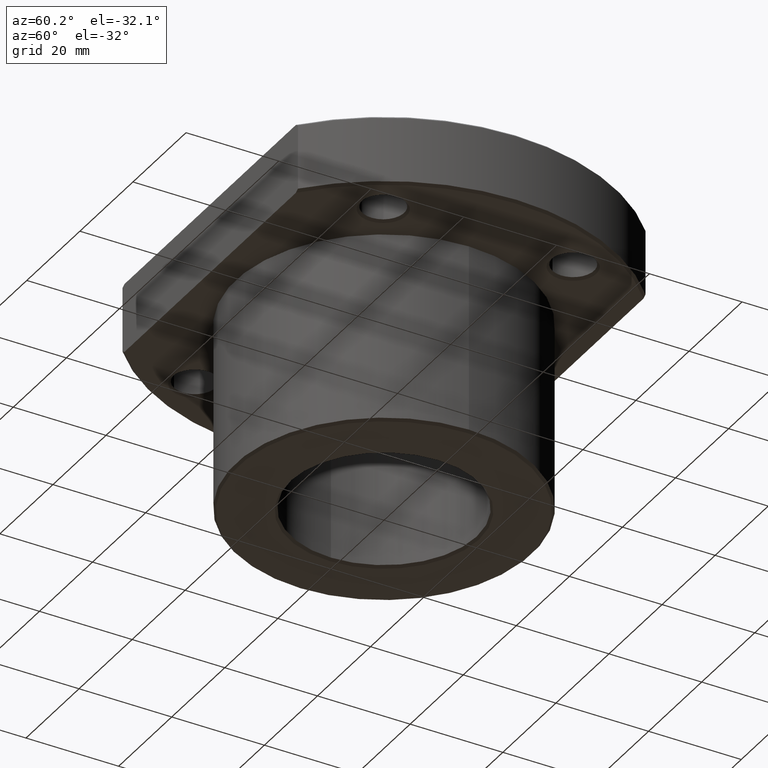
[diagram: clean part render]
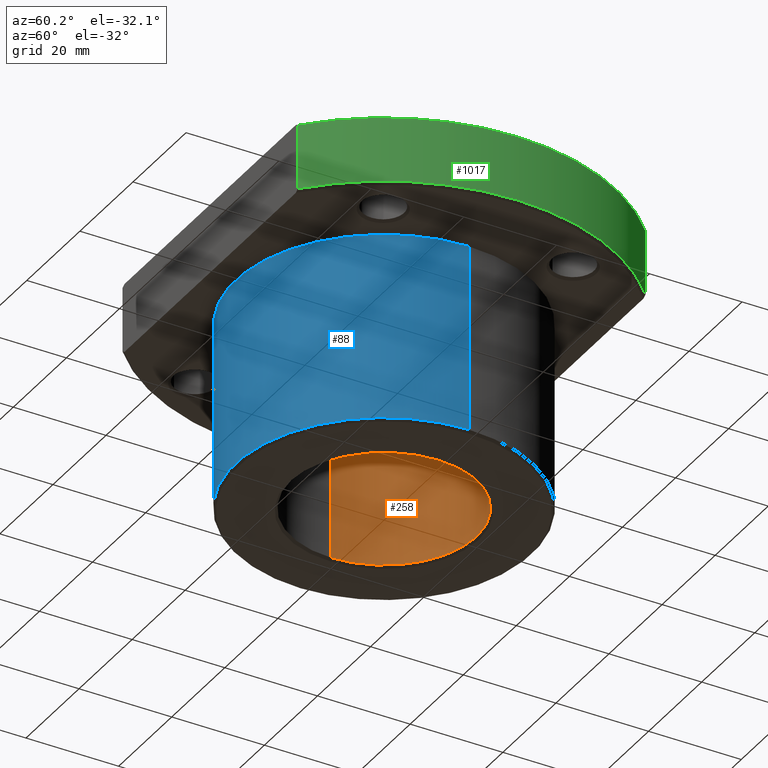
[diagram: same view with three faces highlighted in distinct colors, each labeled with its STEP entity id]
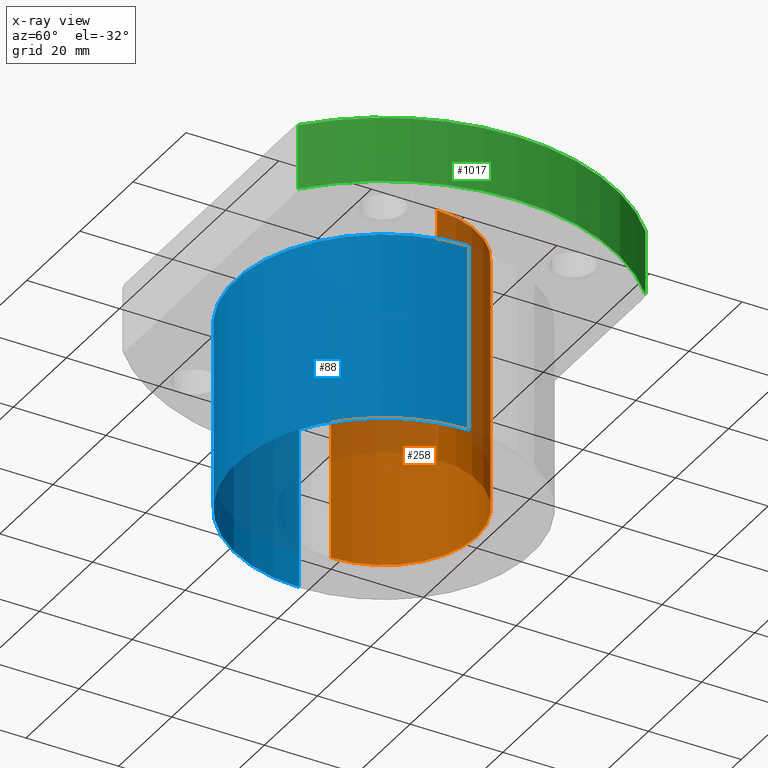
[diagram: x-ray of the same camera — body ghosted, the three highlighted faces saturated]
A machine part, auxiliary view with three faces highlighted in distinct colors.
The next image is the same camera in x-ray (body ghosted, the three faces saturated) — at least one of them is partly hidden behind the body in this view.
Their STEP definitions:

[orange] entity #258 — the highlighted cylindrical surface (partial cylindrical patch) has radius 20 mm, axis along (0, 0, 1).
#211=AXIS2_PLACEMENT_3D('Circle Axis2P3D',#209,#210,$) ;
#231=AXIS2_PLACEMENT_3D('Cylinder Axis2P3D',#228,#229,#230) ;
#235=AXIS2_PLACEMENT_3D('Circle Axis2P3D',#233,#234,$) ;
#174=CARTESIAN_POINT('Vertex',(-20.,2.44921270764E-015,0.5)) ;
#181=CARTESIAN_POINT('Vertex',(20.,-4.89842541529E-015,0.5)) ;
#209=CARTESIAN_POINT('Axis2P3D Location',(-9.99200722163E-016,0.,0.5)) ;
#228=CARTESIAN_POINT('Axis2P3D Location',(0.,0.,20.5)) ;
#233=CARTESIAN_POINT('Axis2P3D Location',(0.,0.,55.5)) ;
#237=CARTESIAN_POINT('Vertex',(20.,-4.89842541529E-015,55.5)) ;
#239=CARTESIAN_POINT('Vertex',(-20.,2.44921270764E-015,55.5)) ;
#242=CARTESIAN_POINT('Line Origine',(-20.,2.44921270764E-015,41.)) ;
#247=CARTESIAN_POINT('Line Origine',(20.,0.,41.)) ;
#210=DIRECTION('Axis2P3D Direction',(-3.96182715644E-048,6.6321276591E-032,1.)) ;
#229=DIRECTION('Axis2P3D Direction',(0.,0.,1.)) ;
#230=DIRECTION('Axis2P3D XDirection',(1.,0.,0.)) ;
#234=DIRECTION('Axis2P3D Direction',(0.,0.,1.)) ;
#243=DIRECTION('Vector Direction',(0.,0.,1.)) ;
#248=DIRECTION('Vector Direction',(0.,0.,1.)) ;
#244=VECTOR('Line Direction',#243,1.) ;
#249=VECTOR('Line Direction',#248,1.) ;
#253=ORIENTED_EDGE('',*,*,#241,.T.) ;
#254=ORIENTED_EDGE('',*,*,#246,.F.) ;
#255=ORIENTED_EDGE('',*,*,#213,.F.) ;
#256=ORIENTED_EDGE('',*,*,#251,.T.) ;
#258=ADVANCED_FACE('',(#257),#232,.F.) ;
#212=CIRCLE('generated circle',#211,20.) ;
#236=CIRCLE('generated circle',#235,20.) ;
#232=CYLINDRICAL_SURFACE('generated cylinder',#231,20.) ;
#213=EDGE_CURVE('',#182,#175,#212,.T.) ;
#241=EDGE_CURVE('',#238,#240,#236,.T.) ;
#246=EDGE_CURVE('',#175,#240,#245,.T.) ;
#251=EDGE_CURVE('',#182,#238,#250,.T.) ;
#252=EDGE_LOOP('',(#253,#254,#255,#256)) ;
#257=FACE_OUTER_BOUND('',#252,.T.) ;
#245=LINE('Line',#242,#244) ;
#250=LINE('Line',#247,#249) ;
#175=VERTEX_POINT('',#174) ;
#182=VERTEX_POINT('',#181) ;
#238=VERTEX_POINT('',#237) ;
#240=VERTEX_POINT('',#239) ;

[blue] entity #88 — the highlighted cylindrical surface (partial cylindrical patch) has radius 32 mm, axis along (0, 0, 1).
#35=AXIS2_PLACEMENT_3D('Cylinder Axis2P3D',#32,#33,#34) ;
#74=AXIS2_PLACEMENT_3D('Circle Axis2P3D',#72,#73,$) ;
#79=AXIS2_PLACEMENT_3D('Circle Axis2P3D',#77,#78,$) ;
#32=CARTESIAN_POINT('Axis2P3D Location',(0.,0.,20.5)) ;
#37=CARTESIAN_POINT('Line Origine',(-32.,3.91874033223E-015,20.5)) ;
#41=CARTESIAN_POINT('Vertex',(-32.,3.91874033223E-015,0.5)) ;
#43=CARTESIAN_POINT('Vertex',(-32.,3.91874033223E-015,41.)) ;
#50=CARTESIAN_POINT('Vertex',(32.,0.,41.)) ;
#53=CARTESIAN_POINT('Line Origine',(32.,0.,20.5)) ;
#57=CARTESIAN_POINT('Vertex',(32.,-7.83748066446E-015,0.5)) ;
#72=CARTESIAN_POINT('Axis2P3D Location',(0.,0.,41.)) ;
#77=CARTESIAN_POINT('Axis2P3D Location',(0.,0.,0.5)) ;
#33=DIRECTION('Axis2P3D Direction',(0.,0.,1.)) ;
#34=DIRECTION('Axis2P3D XDirection',(1.,0.,0.)) ;
#38=DIRECTION('Vector Direction',(0.,0.,1.)) ;
#54=DIRECTION('Vector Direction',(0.,0.,1.)) ;
#73=DIRECTION('Axis2P3D Direction',(0.,0.,1.)) ;
#78=DIRECTION('Axis2P3D Direction',(0.,0.,1.)) ;
#39=VECTOR('Line Direction',#38,1.) ;
#55=VECTOR('Line Direction',#54,1.) ;
#83=ORIENTED_EDGE('',*,*,#59,.T.) ;
#84=ORIENTED_EDGE('',*,*,#76,.F.) ;
#85=ORIENTED_EDGE('',*,*,#45,.F.) ;
#86=ORIENTED_EDGE('',*,*,#81,.T.) ;
#88=ADVANCED_FACE('',(#87),#36,.T.) ;
#75=CIRCLE('generated circle',#74,32.) ;
#80=CIRCLE('generated circle',#79,32.) ;
#36=CYLINDRICAL_SURFACE('generated cylinder',#35,32.) ;
#45=EDGE_CURVE('',#42,#44,#40,.T.) ;
#59=EDGE_CURVE('',#58,#51,#56,.T.) ;
#76=EDGE_CURVE('',#44,#51,#75,.T.) ;
#81=EDGE_CURVE('',#42,#58,#80,.T.) ;
#82=EDGE_LOOP('',(#83,#84,#85,#86)) ;
#87=FACE_OUTER_BOUND('',#82,.T.) ;
#40=LINE('Line',#37,#39) ;
#56=LINE('Line',#53,#55) ;
#42=VERTEX_POINT('',#41) ;
#44=VERTEX_POINT('',#43) ;
#51=VERTEX_POINT('',#50) ;
#58=VERTEX_POINT('',#57) ;

[green] entity #1017 — the highlighted cylindrical surface (partial cylindrical patch) has radius 50 mm, axis along (0, 0, 1).
#969=AXIS2_PLACEMENT_3D('Circle Axis2P3D',#967,#968,$) ;
#990=AXIS2_PLACEMENT_3D('Cylinder Axis2P3D',#987,#988,#989) ;
#1008=AXIS2_PLACEMENT_3D('Circle Axis2P3D',#1006,#1007,$) ;
#964=CARTESIAN_POINT('Vertex',(33.0718913883,-37.5,55.5)) ;
#967=CARTESIAN_POINT('Axis2P3D Location',(1.42108547152E-014,-2.07912029607E-015,55.5)) ;
#971=CARTESIAN_POINT('Vertex',(33.0718913883,37.5,55.5)) ;
#987=CARTESIAN_POINT('Axis2P3D Location',(0.,0.,48.5)) ;
#992=CARTESIAN_POINT('Line Origine',(33.0718913883,37.5,48.5)) ;
#996=CARTESIAN_POINT('Vertex',(33.0718913883,37.5,41.5)) ;
#999=CARTESIAN_POINT('Line Origine',(33.0718913883,-37.5,48.5)) ;
#1003=CARTESIAN_POINT('Vertex',(33.0718913883,-37.5,41.5)) ;
#1006=CARTESIAN_POINT('Axis2P3D Location',(0.,0.,41.5)) ;
#968=DIRECTION('Axis2P3D Direction',(-1.61637663644E-014,1.45725614388E-014,1.)) ;
#988=DIRECTION('Axis2P3D Direction',(0.,0.,1.)) ;
#989=DIRECTION('Axis2P3D XDirection',(0.661437827766,-0.75,0.)) ;
#993=DIRECTION('Vector Direction',(0.,0.,1.)) ;
#1000=DIRECTION('Vector Direction',(0.,0.,1.)) ;
#1007=DIRECTION('Axis2P3D Direction',(0.,0.,1.)) ;
#994=VECTOR('Line Direction',#993,1.) ;
#1001=VECTOR('Line Direction',#1000,1.) ;
#1012=ORIENTED_EDGE('',*,*,#998,.T.) ;
#1013=ORIENTED_EDGE('',*,*,#973,.F.) ;
#1014=ORIENTED_EDGE('',*,*,#1005,.F.) ;
#1015=ORIENTED_EDGE('',*,*,#1010,.T.) ;
#1017=ADVANCED_FACE('',(#1016),#991,.T.) ;
#970=CIRCLE('generated circle',#969,50.) ;
#1009=CIRCLE('generated circle',#1008,50.) ;
#991=CYLINDRICAL_SURFACE('generated cylinder',#990,50.) ;
#973=EDGE_CURVE('',#965,#972,#970,.T.) ;
#998=EDGE_CURVE('',#997,#972,#995,.T.) ;
#1005=EDGE_CURVE('',#1004,#965,#1002,.T.) ;
#1010=EDGE_CURVE('',#1004,#997,#1009,.T.) ;
#1011=EDGE_LOOP('',(#1012,#1013,#1014,#1015)) ;
#1016=FACE_OUTER_BOUND('',#1011,.T.) ;
#995=LINE('Line',#992,#994) ;
#1002=LINE('Line',#999,#1001) ;
#965=VERTEX_POINT('',#964) ;
#972=VERTEX_POINT('',#971) ;
#997=VERTEX_POINT('',#996) ;
#1004=VERTEX_POINT('',#1003) ;